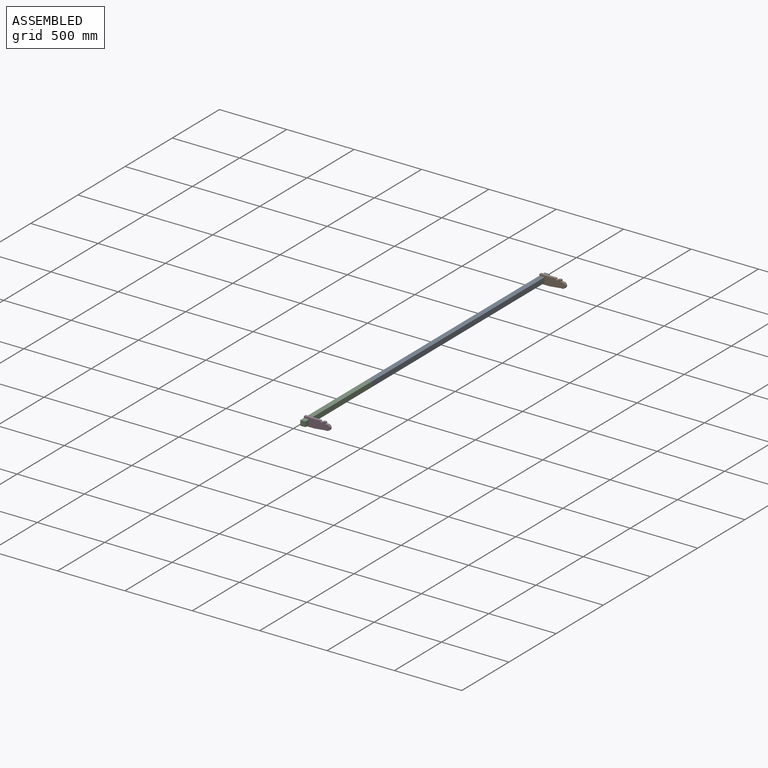
[diagram: assembled view]
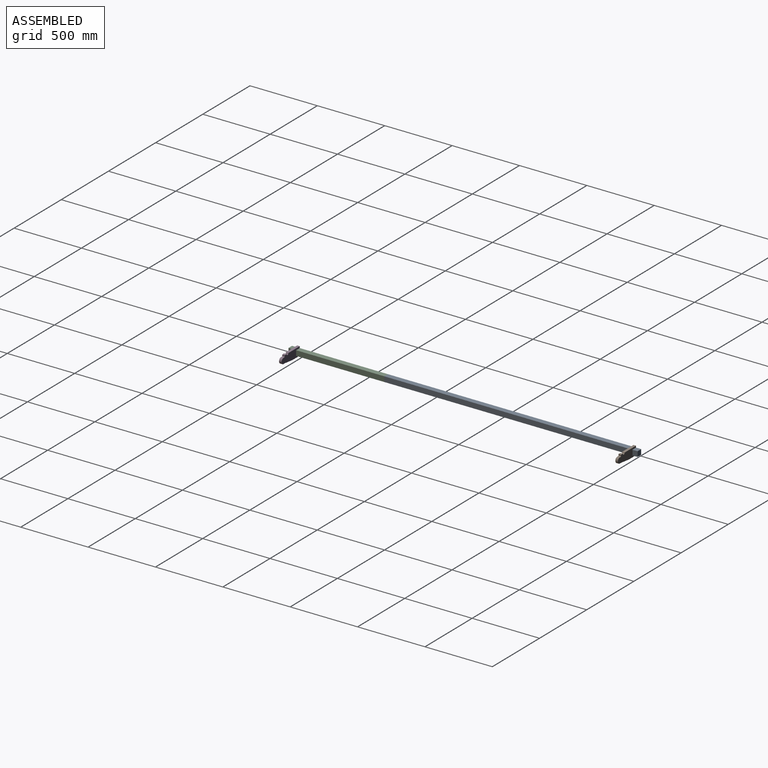
[diagram: assembled view, second angle]
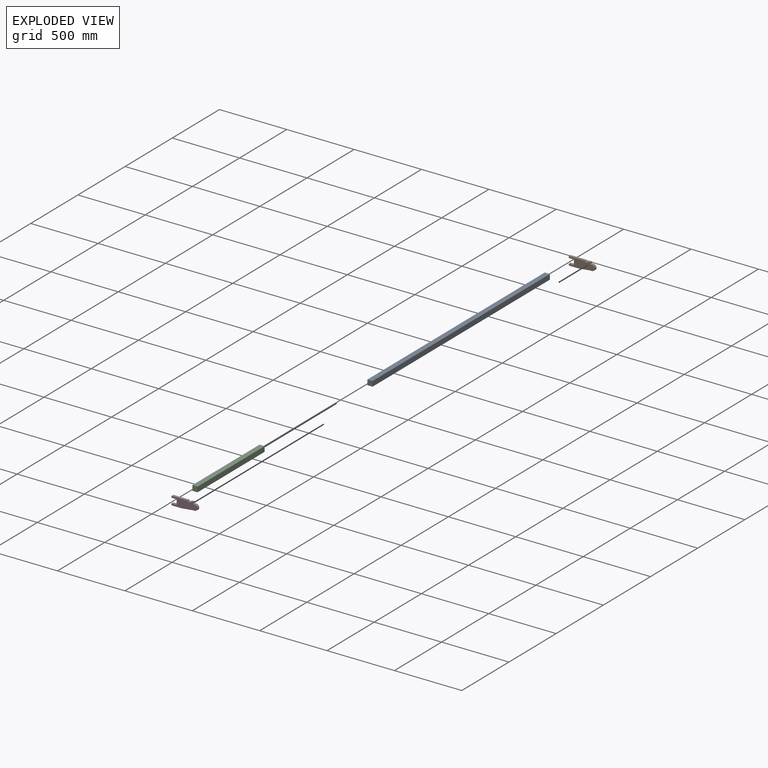
[diagram: exploded view]
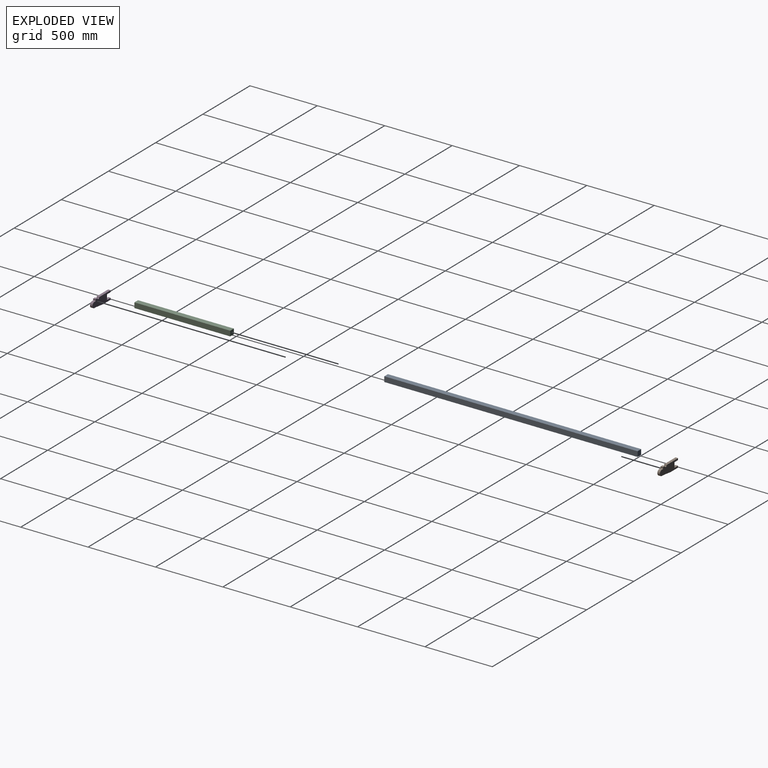
[diagram: exploded view, second angle]
ASSEMBLY  parts=4 mates=3
PART A: 6 faces, bbox 38.1x1879.6x38.1 mm
  f0: plane 1879.6x38.1mm, normal (0,0,1), area 71612.8mm2, adj f1,f3,f4,f5
  f1: plane 1879.6x38.1mm, normal (-1,0,0), area 71612.8mm2, adj f0,f2,f4,f5
  f2: plane 1879.6x38.1mm, normal (0,0,-1), area 71612.8mm2, adj f1,f3,f4,f5
  f3: plane 1879.6x38.1mm, normal (1,0,0), area 71612.8mm2, adj f0,f2,f4,f5
  f4: plane 38.1x38.1mm, normal (0,-1,0), area 1451.6mm2, adj f0,f1,f2,f3
  f5: plane 38.1x38.1mm, normal (0,1,0), area 1451.6mm2, adj f0,f1,f2,f3
PART B: 18 faces, bbox 192.3x19.1x63.5 mm
  f0: plane 19.05x19.05mm, normal (0,0,1), area 362.9mm2, adj f5,f13,f14,f17
  f1: plane 82.21x19.05mm, normal (0.11,0,-0.99), area 1576.5mm2, adj f12,f13,f14,f16
  f2: plane 19.05x11.95mm, normal (-0.02,0,-1), area 227.7mm2, adj f3,f13,f14,f16
  f3: cylinder r=20.88mm len=41.52mm, axis (0,1,0), area 1196.6mm2, adj f2,f4,f13,f14
  f4: plane 19.05x10.8mm, normal (0,0,1), area 205.6mm2, adj f3,f13,f14,f15
  f5: plane 19.05x7.62mm, normal (1,0,0), area 145.2mm2, adj f0,f13,f14,f15
  f6: plane 120.65x19.05mm, normal (0,0,1), area 2298.4mm2, adj f7,f13,f14,f17
  f7: plane 19.05x12.7mm, normal (-1,0,0), area 241.9mm2, adj f6,f8,f13,f14
  f8: plane 38.1x19.05mm, normal (0,0,-1), area 725.8mm2, adj f7,f9,f13,f14
  f9: plane 38.1x19.05mm, normal (-1,0,0), area 725.8mm2, adj f8,f10,f13,f14
  f10: plane 38.1x19.05mm, normal (0,0,1), area 725.8mm2, adj f9,f11,f13,f14
  f11: plane 19.05x12.7mm, normal (-1,0,0), area 241.9mm2, adj f10,f12,f13,f14
  f12: plane 76.2x19.05mm, normal (0,0,-1), area 1451.6mm2, adj f1,f11,f13,f14
  f13: plane 192.33x63.5mm, normal (0,-1,0), area 9309mm2, adj f0,f1,f2,f3,f4,f5,f6,f7
  f14: plane 192.33x63.5mm, normal (0,1,0), area 9309mm2, adj f0,f1,f2,f3,f4,f5,f6,f7
  f15: cylinder r=5.08mm len=19.05mm, axis (0,-1,0), area 152mm2, adj f4,f5,f13,f14
  f16: cylinder r=5.08mm len=19.05mm, axis (0,1,0), area 13mm2, adj f1,f2,f13,f14
  f17: cylinder r=9.53mm len=19.05mm, axis (0,-1,0), area 570mm2, adj f0,f6,f13,f14
PART C: 6 faces, bbox 38.1x711.2x38.1 mm
  f0: plane 711.2x38.1mm, normal (1,0,0), area 27096.7mm2, adj f1,f3,f4,f5
  f1: plane 711.2x38.1mm, normal (0,0,1), area 27096.7mm2, adj f0,f2,f4,f5
  f2: plane 711.2x38.1mm, normal (-1,0,0), area 27096.7mm2, adj f1,f3,f4,f5
  f3: plane 711.2x38.1mm, normal (0,0,-1), area 27096.7mm2, adj f0,f2,f4,f5
  f4: plane 38.1x38.1mm, normal (0,-1,0), area 1451.6mm2, adj f0,f1,f2,f3
  f5: plane 38.1x38.1mm, normal (0,1,0), area 1451.6mm2, adj f0,f1,f2,f3
PART D: same geometry as B
PLACE A t=(-405.82,1556.71,-666.28)mm
PLACE B t=(-348.33,1518.61,-685.33)mm
PLACE C t=(-405.82,-322.89,-666.28)mm
PLACE D t=(-348.33,-976.94,-685.33)mm
MATE slider B.f14 <-> A.f5  axis (0,1,0) through (-386.77,1518.61,-666.28)mm
MATE fastened A.f4 <-> C.f5  axis (0,-1,0) through (-405.82,-322.89,-666.28)mm
MATE slider D.f13 <-> C.f4  axis (0,-1,0) through (-386.77,-995.99,-666.28)mm
